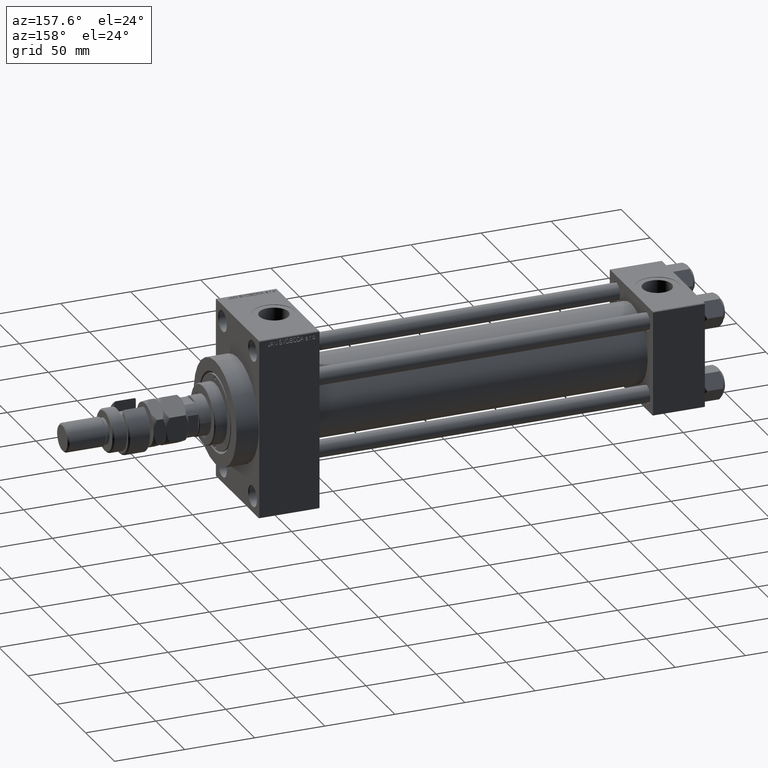
[diagram: clean part render]
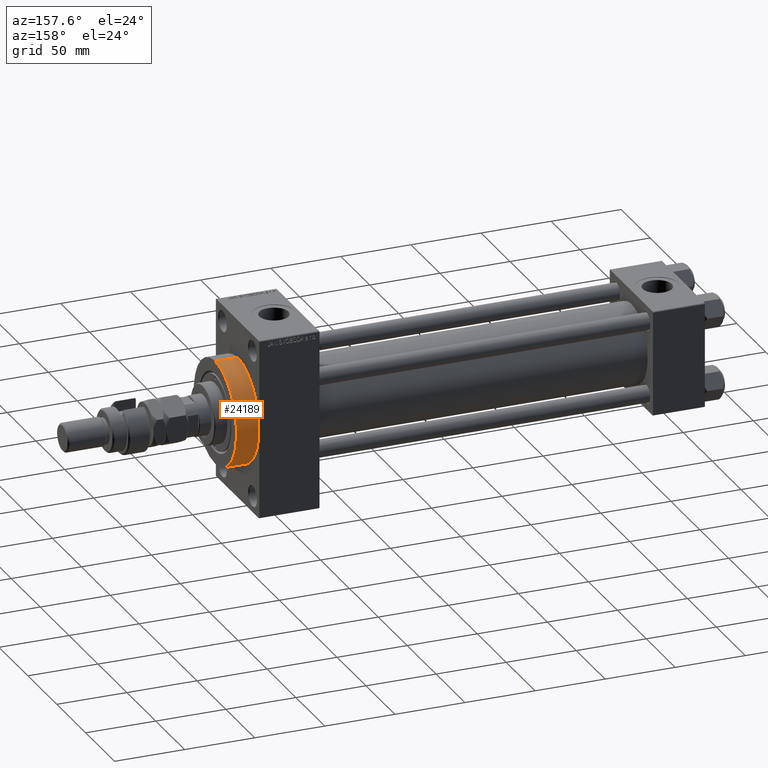
[diagram: same view with one face highlighted and labeled with its STEP entity id]
A machine part, auxiliary view. The second image highlights one B-rep face of the part: STEP entity #24189.
In plain terms, the highlighted cylindrical surface (partial cylindrical patch) has radius 37 mm, axis along (-1, -0, -0).
Its self-contained STEP definition (entity closure, byte-faithful):
#396 = EDGE_CURVE ( 'NONE', #10306, #38713, #28435, .T. ) ;
#1646 = CYLINDRICAL_SURFACE ( 'NONE', #46204, 37.00000000000000000 ) ;
#3397 = CARTESIAN_POINT ( 'NONE',  ( 317.9999999999999432, 4.531193156845206793E-15, -37.00000000000000000 ) ) ;
#6126 = LINE ( 'NONE', #10180, #45036 ) ;
#6831 = ORIENTED_EDGE ( 'NONE', *, *, #396, .F. ) ;
#6966 = AXIS2_PLACEMENT_3D ( 'NONE', #14404, #26341, #18720 ) ;
#8642 = CARTESIAN_POINT ( 'NONE',  ( 333.9999999999999432, 4.531193156845206793E-15, -37.00000000000000000 ) ) ;
#9168 = ORIENTED_EDGE ( 'NONE', *, *, #16095, .T. ) ;
#10124 = VECTOR ( 'NONE', #35105, 1000.000000000000000 ) ;
#10180 = CARTESIAN_POINT ( 'NONE',  ( 333.9999999999999432, 0.000000000000000000, 37.00000000000000000 ) ) ;
#10210 = EDGE_CURVE ( 'NONE', #10306, #40212, #39163, .T. ) ;
#10306 = VERTEX_POINT ( 'NONE', #8642 ) ;
#13052 = CARTESIAN_POINT ( 'NONE',  ( 317.9999999999999432, 0.000000000000000000, 37.00000000000000000 ) ) ;
#14404 = CARTESIAN_POINT ( 'NONE',  ( 317.9999999999999432, 0.000000000000000000, 0.000000000000000000 ) ) ;
#16095 = EDGE_CURVE ( 'NONE', #40212, #17559, #40262, .T. ) ;
#17559 = VERTEX_POINT ( 'NONE', #13052 ) ;
#17578 = DIRECTION ( 'NONE',  ( -1.000000000000000000, -0.000000000000000000, -0.000000000000000000 ) ) ;
#18720 = DIRECTION ( 'NONE',  ( 0.000000000000000000, 0.000000000000000000, -1.000000000000000000 ) ) ;
#20386 = ORIENTED_EDGE ( 'NONE', *, *, #10210, .T. ) ;
#20467 = DIRECTION ( 'NONE',  ( 0.000000000000000000, 0.000000000000000000, 1.000000000000000000 ) ) ;
#23657 = CARTESIAN_POINT ( 'NONE',  ( 333.9999999999999432, 4.531193156845206793E-15, -37.00000000000000000 ) ) ;
#24189 = ADVANCED_FACE ( 'NONE', ( #28829 ), #1646, .T. ) ;
#25823 = DIRECTION ( 'NONE',  ( 0.000000000000000000, 0.000000000000000000, -1.000000000000000000 ) ) ;
#26341 = DIRECTION ( 'NONE',  ( 1.000000000000000000, 0.000000000000000000, 0.000000000000000000 ) ) ;
#28435 = CIRCLE ( 'NONE', #29214, 37.00000000000000000 ) ;
#28829 = FACE_OUTER_BOUND ( 'NONE', #34953, .T. ) ;
#29214 = AXIS2_PLACEMENT_3D ( 'NONE', #29643, #45150, #25823 ) ;
#29643 = CARTESIAN_POINT ( 'NONE',  ( 333.9999999999999432, 0.000000000000000000, 0.000000000000000000 ) ) ;
#34953 = EDGE_LOOP ( 'NONE', ( #6831, #20386, #9168, #46766 ) ) ;
#35071 = CARTESIAN_POINT ( 'NONE',  ( 333.9999999999999432, 0.000000000000000000, 37.00000000000000000 ) ) ;
#35105 = DIRECTION ( 'NONE',  ( -1.000000000000000000, -0.000000000000000000, -0.000000000000000000 ) ) ;
#36716 = CARTESIAN_POINT ( 'NONE',  ( 333.9999999999999432, 0.000000000000000000, 0.000000000000000000 ) ) ;
#38713 = VERTEX_POINT ( 'NONE', #35071 ) ;
#39163 = LINE ( 'NONE', #23657, #10124 ) ;
#40212 = VERTEX_POINT ( 'NONE', #3397 ) ;
#40262 = CIRCLE ( 'NONE', #6966, 37.00000000000000000 ) ;
#40758 = DIRECTION ( 'NONE',  ( -1.000000000000000000, -0.000000000000000000, -0.000000000000000000 ) ) ;
#45036 = VECTOR ( 'NONE', #17578, 1000.000000000000000 ) ;
#45150 = DIRECTION ( 'NONE',  ( 1.000000000000000000, 0.000000000000000000, 0.000000000000000000 ) ) ;
#46204 = AXIS2_PLACEMENT_3D ( 'NONE', #36716, #40758, #20467 ) ;
#46766 = ORIENTED_EDGE ( 'NONE', *, *, #48138, .F. ) ;
#48138 = EDGE_CURVE ( 'NONE', #38713, #17559, #6126, .T. ) ;